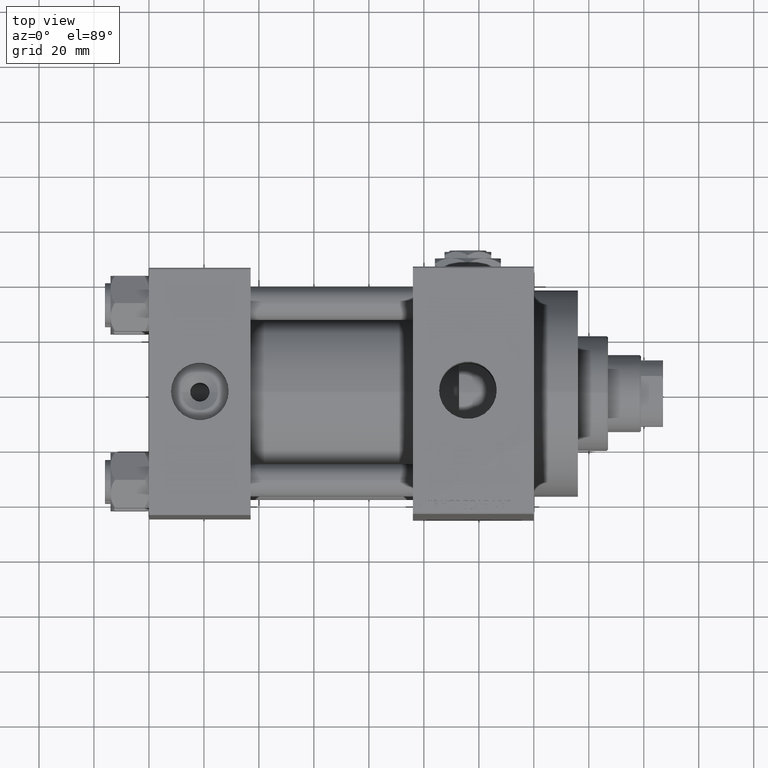
[diagram: clean part render]
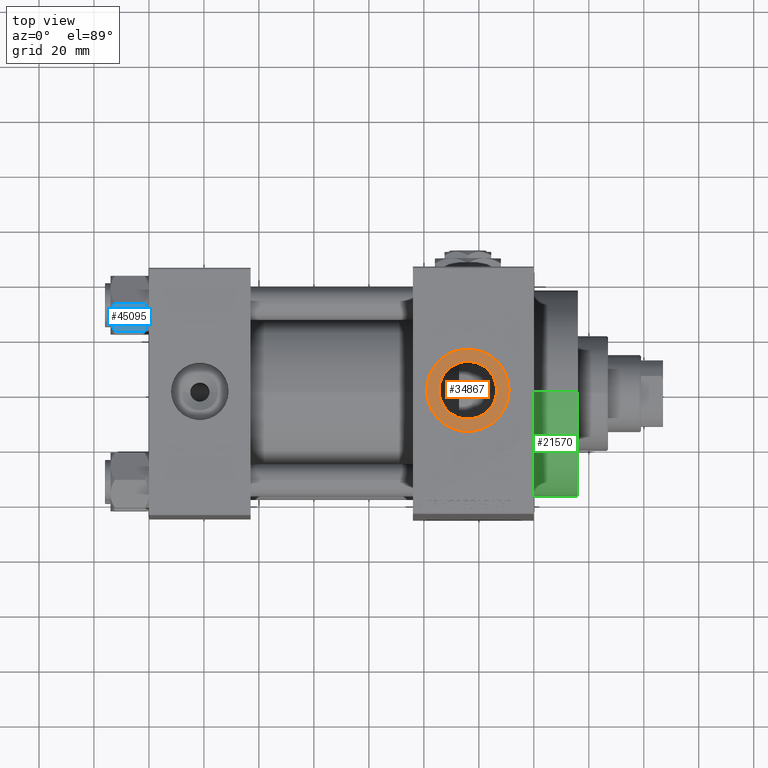
[diagram: same view with three faces highlighted in distinct colors, each labeled with its STEP entity id]
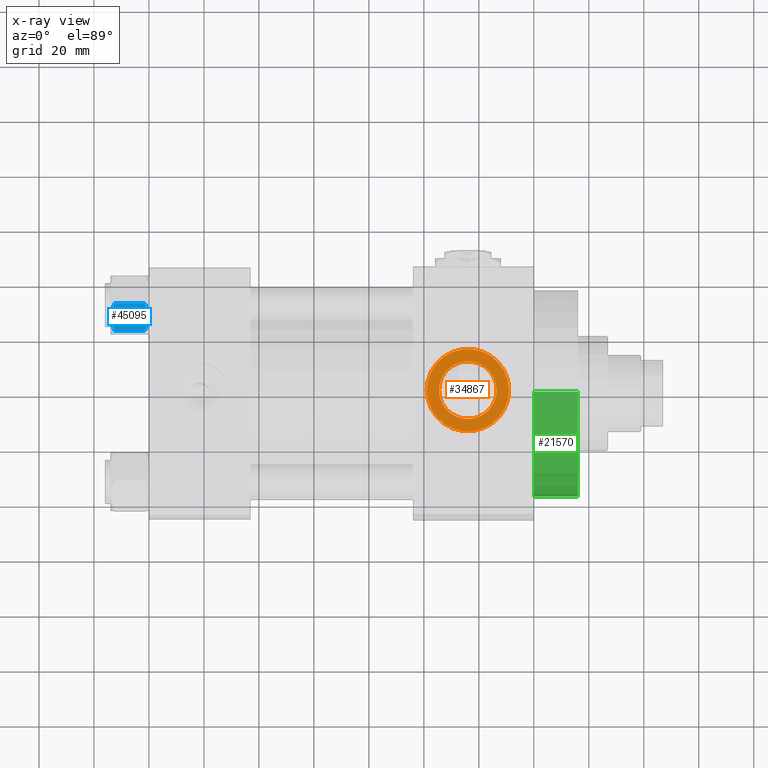
[diagram: x-ray of the same camera — body ghosted, the three highlighted faces saturated]
A machine part, top view with three faces highlighted in distinct colors.
The next image is the same camera in x-ray (body ghosted, the three faces saturated) — at least one of them is partly hidden behind the body in this view.
Their STEP definitions:

[orange] entity #34867 — the highlighted planar face has unit normal (0, 0, 1).
#734 = CARTESIAN_POINT ( 'NONE',  ( 116.0000000000000000, 0.000000000000000000, 70.79999999999998295 ) ) ;
#1818 = AXIS2_PLACEMENT_3D ( 'NONE', #32538, #28341, #42956 ) ;
#3109 = CARTESIAN_POINT ( 'NONE',  ( 105.5199999999999960, 0.000000000000000000, 70.79999999999998295 ) ) ;
#3257 = AXIS2_PLACEMENT_3D ( 'NONE', #24719, #8908, #35378 ) ;
#8908 = DIRECTION ( 'NONE',  ( 0.000000000000000000, 0.000000000000000000, 1.000000000000000000 ) ) ;
#9610 = VERTEX_POINT ( 'NONE', #46983 ) ;
#9641 = PLANE ( 'NONE',  #3257 ) ;
#10798 = CIRCLE ( 'NONE', #20278, 10.48000000000000398 ) ;
#14360 = CIRCLE ( 'NONE', #47570, 15.00000000000000000 ) ;
#14552 = VERTEX_POINT ( 'NONE', #43934 ) ;
#18697 = CARTESIAN_POINT ( 'NONE',  ( 116.0000000000000000, 0.000000000000000000, 70.79999999999998295 ) ) ;
#19709 = EDGE_LOOP ( 'NONE', ( #44266, #22400 ) ) ;
#20278 = AXIS2_PLACEMENT_3D ( 'NONE', #48954, #26414, #41050 ) ;
#20313 = CIRCLE ( 'NONE', #32977, 15.00000000000000000 ) ;
#21010 = FACE_BOUND ( 'NONE', #19709, .T. ) ;
#21282 = ORIENTED_EDGE ( 'NONE', *, *, #48868, .T. ) ;
#21616 = CIRCLE ( 'NONE', #1818, 10.48000000000000398 ) ;
#22400 = ORIENTED_EDGE ( 'NONE', *, *, #39935, .T. ) ;
#24719 = CARTESIAN_POINT ( 'NONE',  ( 116.0000000000000000, 0.000000000000000000, 70.79999999999998295 ) ) ;
#25879 = DIRECTION ( 'NONE',  ( 0.000000000000000000, 0.000000000000000000, 1.000000000000000000 ) ) ;
#26414 = DIRECTION ( 'NONE',  ( -0.000000000000000000, -0.000000000000000000, -1.000000000000000000 ) ) ;
#27706 = CARTESIAN_POINT ( 'NONE',  ( 131.0000000000000000, 0.000000000000000000, 70.79999999999998295 ) ) ;
#28341 = DIRECTION ( 'NONE',  ( -0.000000000000000000, -0.000000000000000000, -1.000000000000000000 ) ) ;
#30917 = DIRECTION ( 'NONE',  ( 1.000000000000000000, 0.000000000000000000, 0.000000000000000000 ) ) ;
#32035 = VERTEX_POINT ( 'NONE', #27706 ) ;
#32538 = CARTESIAN_POINT ( 'NONE',  ( 116.0000000000000000, 0.000000000000000000, 70.79999999999998295 ) ) ;
#32977 = AXIS2_PLACEMENT_3D ( 'NONE', #18697, #25879, #48900 ) ;
#34867 = ADVANCED_FACE ( 'NONE', ( #21010, #37049 ), #9641, .T. ) ;
#35378 = DIRECTION ( 'NONE',  ( 1.000000000000000000, 0.000000000000000000, -0.000000000000000000 ) ) ;
#35644 = EDGE_CURVE ( 'NONE', #9610, #32035, #14360, .T. ) ;
#37049 = FACE_OUTER_BOUND ( 'NONE', #40672, .T. ) ;
#38114 = DIRECTION ( 'NONE',  ( 0.000000000000000000, 0.000000000000000000, 1.000000000000000000 ) ) ;
#39935 = EDGE_CURVE ( 'NONE', #14552, #47993, #21616, .T. ) ;
#40672 = EDGE_LOOP ( 'NONE', ( #21282, #44447 ) ) ;
#41050 = DIRECTION ( 'NONE',  ( 1.000000000000000000, 0.000000000000000000, 0.000000000000000000 ) ) ;
#42956 = DIRECTION ( 'NONE',  ( 1.000000000000000000, 0.000000000000000000, 0.000000000000000000 ) ) ;
#43934 = CARTESIAN_POINT ( 'NONE',  ( 126.4800000000000040, 1.283429845506425883E-15, 70.79999999999998295 ) ) ;
#44266 = ORIENTED_EDGE ( 'NONE', *, *, #47587, .T. ) ;
#44447 = ORIENTED_EDGE ( 'NONE', *, *, #35644, .T. ) ;
#46983 = CARTESIAN_POINT ( 'NONE',  ( 100.9999999999999858, 1.836970198721030772E-15, 70.79999999999998295 ) ) ;
#47570 = AXIS2_PLACEMENT_3D ( 'NONE', #734, #38114, #30917 ) ;
#47587 = EDGE_CURVE ( 'NONE', #47993, #14552, #10798, .T. ) ;
#47993 = VERTEX_POINT ( 'NONE', #3109 ) ;
#48868 = EDGE_CURVE ( 'NONE', #32035, #9610, #20313, .T. ) ;
#48900 = DIRECTION ( 'NONE',  ( 1.000000000000000000, 0.000000000000000000, 0.000000000000000000 ) ) ;
#48954 = CARTESIAN_POINT ( 'NONE',  ( 116.0000000000000000, 0.000000000000000000, 70.79999999999998295 ) ) ;

[blue] entity #45095 — the highlighted planar face has unit normal (0, 0.5, -0.866).
#608 = ORIENTED_EDGE ( 'NONE', *, *, #47017, .F. ) ;
#808 = CARTESIAN_POINT ( 'NONE',  ( 9.220295946303432189, -4.156409344131454020, 3.521962994683380021E-15 ) ) ;
#1955 = CARTESIAN_POINT ( 'NONE',  ( 5.810000000000000497, -10.06321519197517667, -12.44321519197518811 ) ) ;
#2075 = EDGE_CURVE ( 'NONE', #32170, #9667, #40928, .T. ) ;
#3912 = B_SPLINE_CURVE_WITH_KNOTS ( 'NONE', 3,
 ( #38993, #35270, #43453, #5340, #46687, #9540, #12999, #9778 ),
 .UNSPECIFIED., .F., .F.,
 ( 4, 2, 2, 4 ),
 ( 2.544312114904007178E-07, 0.003011550106433541225, 0.004517197944044565316, 0.006022845781655588975 ),
 .UNSPECIFIED. ) ;
#5340 = CARTESIAN_POINT ( 'NONE',  ( 9.974696630283190757, -2.849749030213793777, -13.69973261901325934 ) ) ;
#5628 = CARTESIAN_POINT ( 'NONE',  ( 11.62000000000000099, -1.689012838886770227E-15, -12.44321519197518633 ) ) ;
#5753 = CARTESIAN_POINT ( 'NONE',  ( 6.731401448974991375, -8.467301068182914392, -0.7141438259524641730 ) ) ;
#6035 = EDGE_CURVE ( 'NONE', #21105, #32170, #6486, .T. ) ;
#6486 = B_SPLINE_CURVE_WITH_KNOTS ( 'NONE', 3,
 ( #44167, #10248, #25334, #40448, #48125, #6769 ),
 .UNSPECIFIED., .F., .F.,
 ( 4, 2, 4 ),
 ( 0.006022845781655588975, 0.009013049135303631554, 0.01200325248895167674 ),
 .UNSPECIFIED. ) ;
#6769 = CARTESIAN_POINT ( 'NONE',  ( 5.810000000000000497, -10.06321519197517667, -12.44321519197518811 ) ) ;
#7013 = CARTESIAN_POINT ( 'NONE',  ( 5.810000000000000497, -10.06321519197517667, -14.00000000000000000 ) ) ;
#7489 = DIRECTION ( 'NONE',  ( -0.000000000000000000, -0.000000000000000000, 1.000000000000000000 ) ) ;
#9411 = PLANE ( 'NONE',  #21776 ) ;
#9540 = CARTESIAN_POINT ( 'NONE',  ( 9.227666995912100489, -4.143642311704125447, -13.96005881939309212 ) ) ;
#9660 = ORIENTED_EDGE ( 'NONE', *, *, #2075, .F. ) ;
#9667 = VERTEX_POINT ( 'NONE', #18264 ) ;
#9718 = CARTESIAN_POINT ( 'NONE',  ( 7.700834831386344170, -6.788193195293096061, -0.1903979688073396681 ) ) ;
#9778 = CARTESIAN_POINT ( 'NONE',  ( 8.715000000000003411, -5.031607595987592774, -14.00000000000000000 ) ) ;
#10248 = CARTESIAN_POINT ( 'NONE',  ( 8.209704053696569304, -5.906805847843727086, -14.00000000000000178 ) ) ;
#10848 = ORIENTED_EDGE ( 'NONE', *, *, #14838, .F. ) ;
#11514 = VERTEX_POINT ( 'NONE', #43395 ) ;
#12999 = CARTESIAN_POINT ( 'NONE',  ( 8.969430103550381617, -4.590921729663316242, -14.00000000000000178 ) ) ;
#13157 = CARTESIAN_POINT ( 'NONE',  ( 11.16498164529022574, -0.7881149087337312453, -1.101766453314952487 ) ) ;
#13175 = CARTESIAN_POINT ( 'NONE',  ( 8.715000000000003411, -5.031607595987592774, 0.000000000000000000 ) ) ;
#13790 = B_SPLINE_CURVE_WITH_KNOTS ( 'NONE', 3,
 ( #34702, #808, #15902, #30990, #13157, #20339 ),
 .UNSPECIFIED., .F., .F.,
 ( 4, 2, 4 ),
 ( 0.006022845781655586372, 0.009013049135303633289, 0.01200325248895168020 ),
 .UNSPECIFIED. ) ;
#14260 = VERTEX_POINT ( 'NONE', #5628 ) ;
#14838 = EDGE_CURVE ( 'NONE', #9667, #11514, #33958, .T. ) ;
#14854 = ORIENTED_EDGE ( 'NONE', *, *, #17282, .T. ) ;
#15142 = DIRECTION ( 'NONE',  ( -0.000000000000000000, -0.000000000000000000, 1.000000000000000000 ) ) ;
#15902 = CARTESIAN_POINT ( 'NONE',  ( 9.716999946243698005, -3.296092779912227932, -0.1545239700039822972 ) ) ;
#16099 = EDGE_CURVE ( 'NONE', #11514, #47312, #13790, .T. ) ;
#16889 = CARTESIAN_POINT ( 'NONE',  ( 7.455303369716807182, -7.213466161761383333, -0.3002673809867365540 ) ) ;
#17282 = EDGE_CURVE ( 'NONE', #14260, #47312, #30461, .T. ) ;
#18264 = CARTESIAN_POINT ( 'NONE',  ( 5.810000000000000497, -10.06321519197517667, -1.556784808024811895 ) ) ;
#20339 = CARTESIAN_POINT ( 'NONE',  ( 11.62000000000000099, -1.924525737834042474E-15, -1.556784808024813893 ) ) ;
#20368 = EDGE_LOOP ( 'NONE', ( #608, #14854, #33772, #10848, #9660, #32164 ) ) ;
#20597 = CARTESIAN_POINT ( 'NONE',  ( 5.810000000000000497, -10.06321519197517667, -1.556784808024811895 ) ) ;
#21105 = VERTEX_POINT ( 'NONE', #21107 ) ;
#21107 = CARTESIAN_POINT ( 'NONE',  ( 8.715000000000003411, -5.031607595987592774, -14.00000000000000000 ) ) ;
#21350 = CARTESIAN_POINT ( 'NONE',  ( 6.265545725125285514, -9.274186850887382150, -1.101239082899530430 ) ) ;
#21776 = AXIS2_PLACEMENT_3D ( 'NONE', #39851, #28462, #43567 ) ;
#22801 = CARTESIAN_POINT ( 'NONE',  ( 11.62000000000000099, -1.813166800014576593E-15, -14.00000000000000000 ) ) ;
#25334 = CARTESIAN_POINT ( 'NONE',  ( 7.713000053756305263, -6.767122412062954062, -13.84547602999601956 ) ) ;
#25736 = CARTESIAN_POINT ( 'NONE',  ( 11.62000000000000099, -1.924525737834042474E-15, -1.556784808024813893 ) ) ;
#28462 = DIRECTION ( 'NONE',  ( -0.8660254037844385966, 0.5000000000000002220, 0.000000000000000000 ) ) ;
#29451 = FACE_OUTER_BOUND ( 'NONE', #20368, .T. ) ;
#30461 = LINE ( 'NONE', #22801, #31324 ) ;
#30990 = CARTESIAN_POINT ( 'NONE',  ( 10.69662495661650503, -1.599332489581334560, -0.7114554706434483844 ) ) ;
#31324 = VECTOR ( 'NONE', #15142, 1000.000000000000000 ) ;
#31975 = CARTESIAN_POINT ( 'NONE',  ( 8.202333004087897450, -5.919572880271052995, -0.03994118060690592109 ) ) ;
#32164 = ORIENTED_EDGE ( 'NONE', *, *, #6035, .F. ) ;
#32170 = VERTEX_POINT ( 'NONE', #1955 ) ;
#33772 = ORIENTED_EDGE ( 'NONE', *, *, #16099, .F. ) ;
#33958 = B_SPLINE_CURVE_WITH_KNOTS ( 'NONE', 3,
 ( #20597, #21350, #5753, #16889, #9718, #31975, #47093, #13175 ),
 .UNSPECIFIED., .F., .F.,
 ( 4, 2, 2, 4 ),
 ( 2.544312114902182352E-07, 0.003011550106433539056, 0.004517197944044561847, 0.006022845781655586372 ),
 .UNSPECIFIED. ) ;
#34702 = CARTESIAN_POINT ( 'NONE',  ( 8.715000000000003411, -5.031607595987592774, 0.000000000000000000 ) ) ;
#35270 = CARTESIAN_POINT ( 'NONE',  ( 11.16445427487472131, -0.7890283410877986237, -12.89876091710047135 ) ) ;
#38993 = CARTESIAN_POINT ( 'NONE',  ( 11.62000000000000099, -1.689012838886770227E-15, -12.44321519197518633 ) ) ;
#39851 = CARTESIAN_POINT ( 'NONE',  ( 11.62000000000000099, -1.813166800014576593E-15, -14.00000000000000000 ) ) ;
#40448 = CARTESIAN_POINT ( 'NONE',  ( 6.733375043383495573, -8.463882702393842550, -13.28854452935654962 ) ) ;
#40928 = LINE ( 'NONE', #7013, #42458 ) ;
#42458 = VECTOR ( 'NONE', #7489, 1000.000000000000000 ) ;
#43395 = CARTESIAN_POINT ( 'NONE',  ( 8.715000000000003411, -5.031607595987592774, 0.000000000000000000 ) ) ;
#43453 = CARTESIAN_POINT ( 'NONE',  ( 10.69859855102500923, -1.595914123792265160, -13.28585617404753627 ) ) ;
#43567 = DIRECTION ( 'NONE',  ( -0.5000000000000001110, -0.8660254037844384856, 0.000000000000000000 ) ) ;
#44167 = CARTESIAN_POINT ( 'NONE',  ( 8.715000000000003411, -5.031607595987592774, -14.00000000000000000 ) ) ;
#45095 = ADVANCED_FACE ( 'NONE', ( #29451 ), #9411, .F. ) ;
#46687 = CARTESIAN_POINT ( 'NONE',  ( 9.729165168613651105, -3.275021996682085046, -13.80960203119265906 ) ) ;
#47017 = EDGE_CURVE ( 'NONE', #14260, #21105, #3912, .T. ) ;
#47093 = CARTESIAN_POINT ( 'NONE',  ( 8.460569896449618099, -5.472293462311865753, 3.427848222766236415E-15 ) ) ;
#47312 = VERTEX_POINT ( 'NONE', #25736 ) ;
#48125 = CARTESIAN_POINT ( 'NONE',  ( 6.265018354709780191, -9.275100283241448196, -12.89823354668505395 ) ) ;

[green] entity #21570 — the highlighted cylindrical surface (partial cylindrical patch) has radius 37.5 mm, axis along (-1, -0, -0).
#1453 = CYLINDRICAL_SURFACE ( 'NONE', #6037, 37.50000000000000711 ) ;
#2724 = DIRECTION ( 'NONE',  ( 0.000000000000000000, 0.000000000000000000, -1.000000000000000000 ) ) ;
#2816 = LINE ( 'NONE', #41418, #18350 ) ;
#2861 = FACE_OUTER_BOUND ( 'NONE', #35814, .T. ) ;
#3340 = EDGE_CURVE ( 'NONE', #46626, #18799, #4210, .T. ) ;
#4210 = LINE ( 'NONE', #45800, #14765 ) ;
#6037 = AXIS2_PLACEMENT_3D ( 'NONE', #16298, #29110, #20740 ) ;
#10171 = VERTEX_POINT ( 'NONE', #23454 ) ;
#14213 = DIRECTION ( 'NONE',  ( -1.000000000000000000, -0.000000000000000000, -0.000000000000000000 ) ) ;
#14765 = VECTOR ( 'NONE', #23969, 1000.000000000000000 ) ;
#15112 = CARTESIAN_POINT ( 'NONE',  ( 140.0000000000000000, 0.000000000000000000, 37.50000000000000711 ) ) ;
#16298 = CARTESIAN_POINT ( 'NONE',  ( 156.0000000000000284, 0.000000000000000000, 0.000000000000000000 ) ) ;
#16403 = DIRECTION ( 'NONE',  ( 1.000000000000000000, 0.000000000000000000, 0.000000000000000000 ) ) ;
#18350 = VECTOR ( 'NONE', #14213, 1000.000000000000000 ) ;
#18799 = VERTEX_POINT ( 'NONE', #15112 ) ;
#20068 = VERTEX_POINT ( 'NONE', #38782 ) ;
#20474 = CARTESIAN_POINT ( 'NONE',  ( 156.0000000000000284, 0.000000000000000000, 0.000000000000000000 ) ) ;
#20740 = DIRECTION ( 'NONE',  ( 0.000000000000000000, 0.000000000000000000, 1.000000000000000000 ) ) ;
#21570 = ADVANCED_FACE ( 'NONE', ( #2861 ), #1453, .T. ) ;
#23454 = CARTESIAN_POINT ( 'NONE',  ( 140.0000000000000000, 4.592425496802575156E-15, -37.50000000000000711 ) ) ;
#23969 = DIRECTION ( 'NONE',  ( -1.000000000000000000, -0.000000000000000000, -0.000000000000000000 ) ) ;
#24372 = ORIENTED_EDGE ( 'NONE', *, *, #33459, .F. ) ;
#25171 = DIRECTION ( 'NONE',  ( 0.000000000000000000, 0.000000000000000000, -1.000000000000000000 ) ) ;
#25501 = CIRCLE ( 'NONE', #33423, 37.50000000000000711 ) ;
#25770 = EDGE_CURVE ( 'NONE', #18799, #10171, #45735, .T. ) ;
#26758 = AXIS2_PLACEMENT_3D ( 'NONE', #35191, #16403, #2724 ) ;
#29110 = DIRECTION ( 'NONE',  ( -1.000000000000000000, -0.000000000000000000, -0.000000000000000000 ) ) ;
#33423 = AXIS2_PLACEMENT_3D ( 'NONE', #20474, #47716, #25171 ) ;
#33459 = EDGE_CURVE ( 'NONE', #20068, #10171, #2816, .T. ) ;
#35191 = CARTESIAN_POINT ( 'NONE',  ( 140.0000000000000000, 0.000000000000000000, 0.000000000000000000 ) ) ;
#35343 = ORIENTED_EDGE ( 'NONE', *, *, #25770, .T. ) ;
#35814 = EDGE_LOOP ( 'NONE', ( #24372, #37615, #36530, #35343 ) ) ;
#36530 = ORIENTED_EDGE ( 'NONE', *, *, #3340, .T. ) ;
#37615 = ORIENTED_EDGE ( 'NONE', *, *, #38753, .F. ) ;
#38753 = EDGE_CURVE ( 'NONE', #46626, #20068, #25501, .T. ) ;
#38782 = CARTESIAN_POINT ( 'NONE',  ( 156.0000000000000284, 4.592425496802575156E-15, -37.50000000000000711 ) ) ;
#41282 = CARTESIAN_POINT ( 'NONE',  ( 156.0000000000000284, 0.000000000000000000, 37.50000000000000711 ) ) ;
#41418 = CARTESIAN_POINT ( 'NONE',  ( 156.0000000000000284, 4.592425496802575156E-15, -37.50000000000000711 ) ) ;
#45735 = CIRCLE ( 'NONE', #26758, 37.50000000000000711 ) ;
#45800 = CARTESIAN_POINT ( 'NONE',  ( 156.0000000000000284, 0.000000000000000000, 37.50000000000000711 ) ) ;
#46626 = VERTEX_POINT ( 'NONE', #41282 ) ;
#47716 = DIRECTION ( 'NONE',  ( 1.000000000000000000, 0.000000000000000000, 0.000000000000000000 ) ) ;